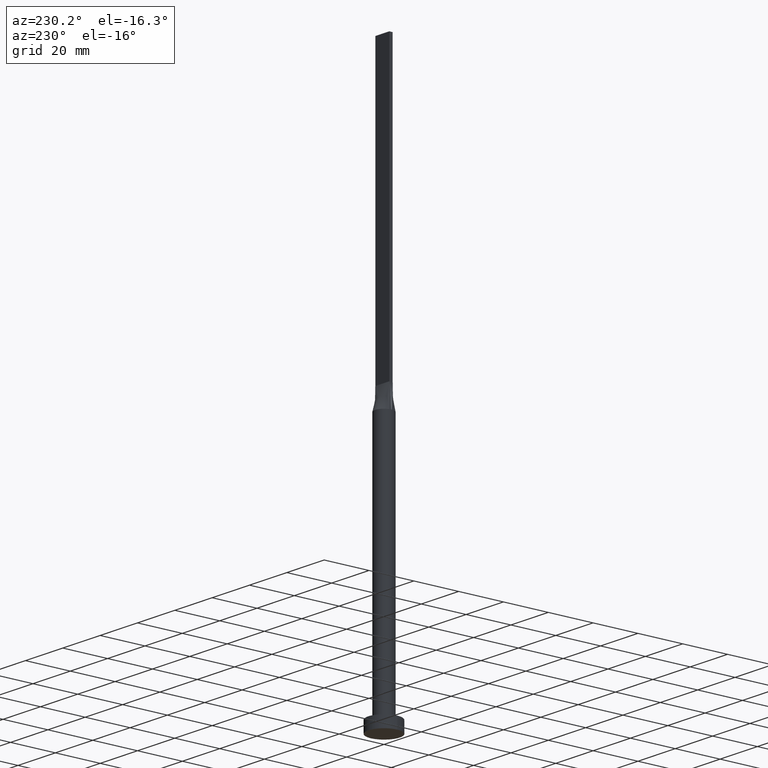
[diagram: clean part render]
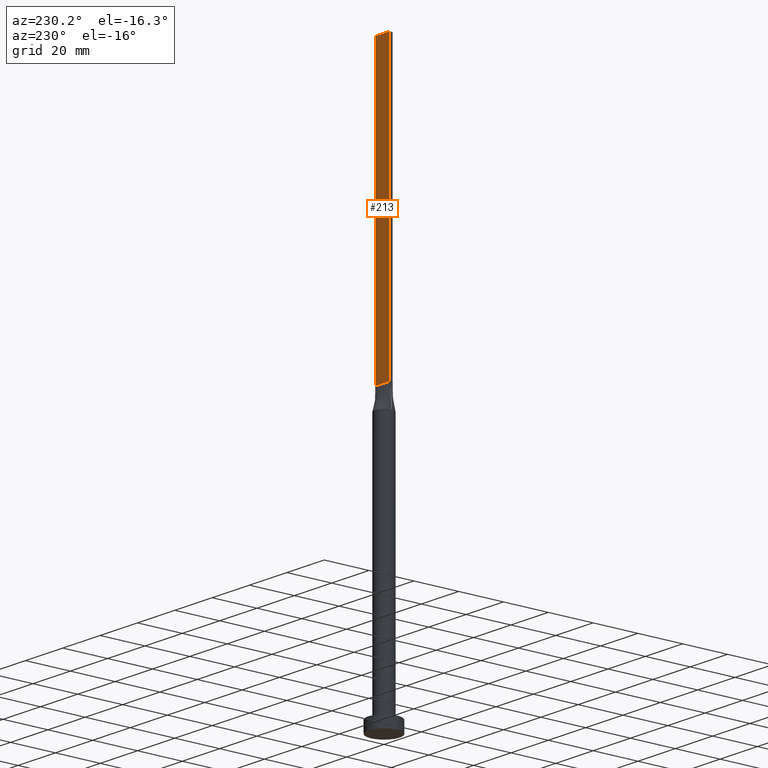
[diagram: same view with one face highlighted and labeled with its STEP entity id]
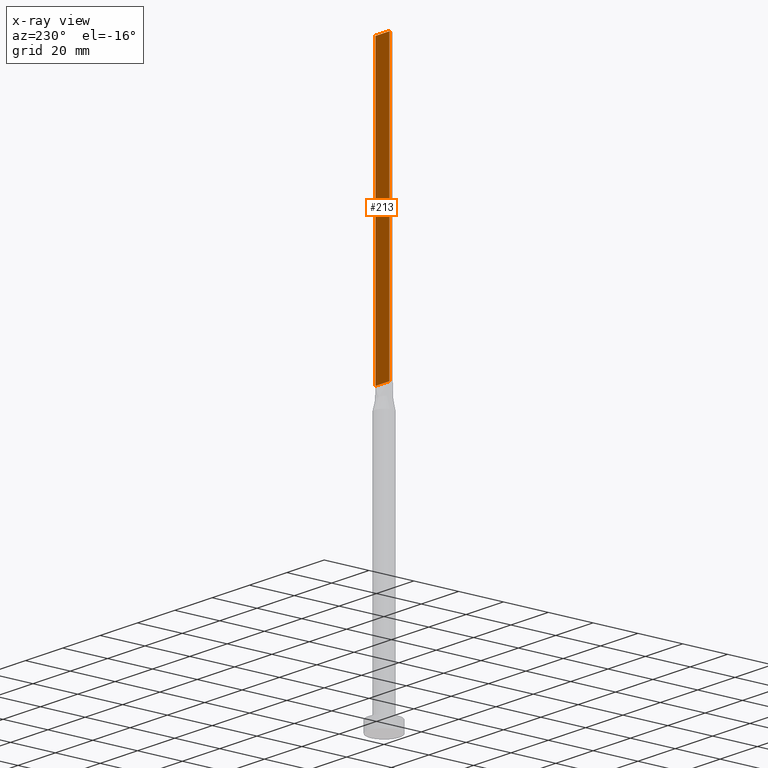
[diagram: x-ray of the same camera — body ghosted, the highlighted face saturated]
A machine part, auxiliary view. The second image highlights one B-rep face of the part: STEP entity #213.
The next image is the same camera in x-ray: the body ghosted, the highlighted face saturated — about 0% of this face is hidden behind the body in this view.
In plain terms, the highlighted planar face has unit normal (0, -1, 0).
Its self-contained STEP definition (entity closure, byte-faithful):
#4 = VECTOR ( 'NONE', #445, 1000.000000000000000 ) ;
#16 = VECTOR ( 'NONE', #218, 1000.000000000000000 ) ;
#31 = ORIENTED_EDGE ( 'NONE', *, *, #576, .T. ) ;
#79 = LINE ( 'NONE', #171, #16 ) ;
#83 = EDGE_CURVE ( 'NONE', #297, #254, #252, .T. ) ;
#105 = ORIENTED_EDGE ( 'NONE', *, *, #83, .T. ) ;
#127 = CARTESIAN_POINT ( 'NONE',  ( 3.750000000000000000, 0.7500000000000002220, 250.0000000000000000 ) ) ;
#129 = CARTESIAN_POINT ( 'NONE',  ( 3.750000000000000000, 0.7500000000000002220, 250.0000000000000000 ) ) ;
#171 = CARTESIAN_POINT ( 'NONE',  ( 3.750000000000000000, 0.7500000000000002220, 250.0000000000000000 ) ) ;
#209 = DIRECTION ( 'NONE',  ( -1.000000000000000000, -0.000000000000000000, -0.000000000000000000 ) ) ;
#211 = VERTEX_POINT ( 'NONE', #304 ) ;
#213 = ADVANCED_FACE ( 'NONE', ( #526 ), #531, .F. ) ;
#218 = DIRECTION ( 'NONE',  ( -1.000000000000000000, 0.000000000000000000, 0.000000000000000000 ) ) ;
#236 = VECTOR ( 'NONE', #382, 1000.000000000000000 ) ;
#252 = LINE ( 'NONE', #417, #396 ) ;
#254 = VERTEX_POINT ( 'NONE', #423 ) ;
#260 = DIRECTION ( 'NONE',  ( 0.000000000000000000, -0.000000000000000000, -1.000000000000000000 ) ) ;
#265 = DIRECTION ( 'NONE',  ( 0.000000000000000000, -1.000000000000000000, 0.000000000000000000 ) ) ;
#288 = EDGE_CURVE ( 'NONE', #506, #211, #79, .T. ) ;
#297 = VERTEX_POINT ( 'NONE', #387 ) ;
#304 = CARTESIAN_POINT ( 'NONE',  ( -3.750000000000000000, 0.7500000000000002220, 250.0000000000000000 ) ) ;
#308 = ORIENTED_EDGE ( 'NONE', *, *, #288, .F. ) ;
#341 = LINE ( 'NONE', #127, #236 ) ;
#353 = EDGE_LOOP ( 'NONE', ( #105, #550, #308, #31 ) ) ;
#357 = LINE ( 'NONE', #536, #4 ) ;
#382 = DIRECTION ( 'NONE',  ( -0.000000000000000000, -0.000000000000000000, -1.000000000000000000 ) ) ;
#387 = CARTESIAN_POINT ( 'NONE',  ( 3.750000000000000000, 0.7500000000000002220, 125.0000000000000000 ) ) ;
#396 = VECTOR ( 'NONE', #209, 1000.000000000000000 ) ;
#404 = AXIS2_PLACEMENT_3D ( 'NONE', #129, #265, #260 ) ;
#416 = EDGE_CURVE ( 'NONE', #211, #254, #357, .T. ) ;
#417 = CARTESIAN_POINT ( 'NONE',  ( -3.750000000000000000, 0.7500000000000002220, 125.0000000000000000 ) ) ;
#423 = CARTESIAN_POINT ( 'NONE',  ( -3.750000000000000000, 0.7500000000000002220, 125.0000000000000000 ) ) ;
#445 = DIRECTION ( 'NONE',  ( -0.000000000000000000, -0.000000000000000000, -1.000000000000000000 ) ) ;
#474 = CARTESIAN_POINT ( 'NONE',  ( 3.750000000000000000, 0.7500000000000002220, 250.0000000000000000 ) ) ;
#506 = VERTEX_POINT ( 'NONE', #474 ) ;
#526 = FACE_OUTER_BOUND ( 'NONE', #353, .T. ) ;
#531 = PLANE ( 'NONE',  #404 ) ;
#536 = CARTESIAN_POINT ( 'NONE',  ( -3.750000000000000000, 0.7500000000000002220, 250.0000000000000000 ) ) ;
#550 = ORIENTED_EDGE ( 'NONE', *, *, #416, .F. ) ;
#576 = EDGE_CURVE ( 'NONE', #506, #297, #341, .T. ) ;